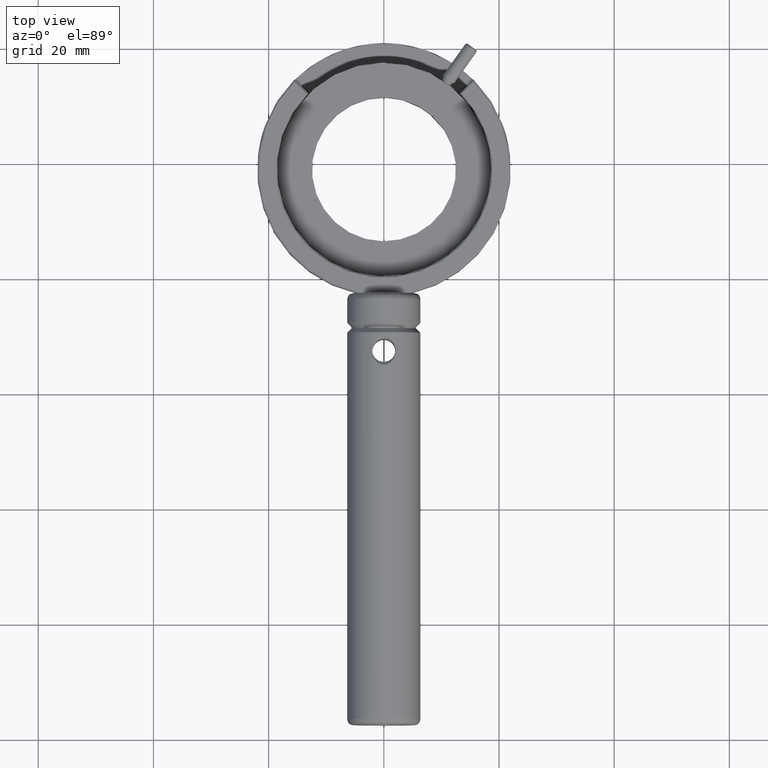
[diagram: clean part render]
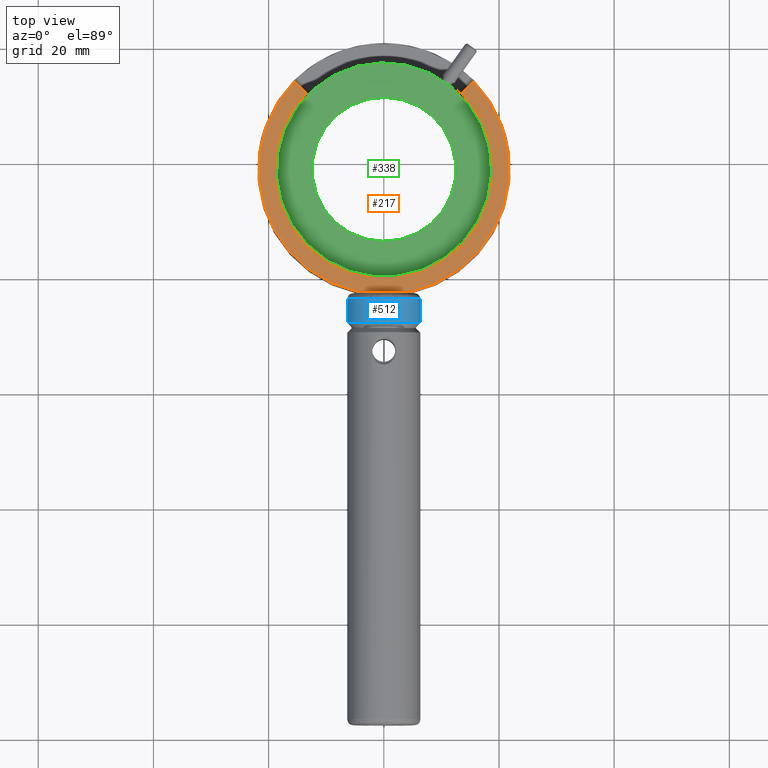
[diagram: same view with three faces highlighted in distinct colors, each labeled with its STEP entity id]
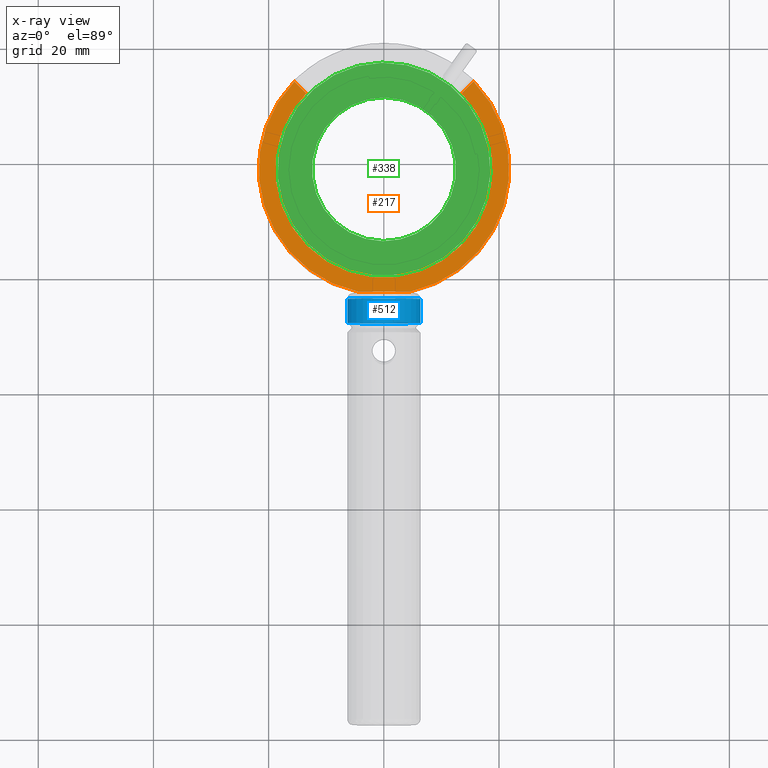
[diagram: x-ray of the same camera — body ghosted, the three highlighted faces saturated]
A machine part, top view with three faces highlighted in distinct colors.
The next image is the same camera in x-ray (body ghosted, the three faces saturated) — at least one of them is partly hidden behind the body in this view.
Their STEP definitions:

[orange] entity #217 — the highlighted planar face has unit normal (0, 0, 1).
#58 = CARTESIAN_POINT ( 'NONE',  ( -4.600498774292244519, 37.75000000000000000, 3.999999999999998224 ) ) ;
#217 = ADVANCED_FACE ( 'NONE', ( #2902 ), #6715, .T. ) ;
#719 = VERTEX_POINT ( 'NONE', #58 ) ;
#742 = AXIS2_PLACEMENT_3D ( 'NONE', #6474, #2152, #4329 ) ;
#852 = CARTESIAN_POINT ( 'NONE',  ( 0.03631047345558670314, 59.00000000000000000, 3.999999999999999112 ) ) ;
#969 = LINE ( 'NONE', #6817, #4707 ) ;
#1131 = CARTESIAN_POINT ( 'NONE',  ( 4.673119721203429222, 37.75000000000000000, 4.000000000000001776 ) ) ;
#1191 = VECTOR ( 'NONE', #4232, 1000.000000000000000 ) ;
#1257 = EDGE_CURVE ( 'NONE', #719, #6372, #6648, .T. ) ;
#1302 = CARTESIAN_POINT ( 'NONE',  ( 0.03631047345558670314, 59.00000000000000000, 4.000000000000000000 ) ) ;
#1559 = LINE ( 'NONE', #7009, #3580 ) ;
#1644 = EDGE_CURVE ( 'NONE', #3593, #719, #4386, .T. ) ;
#1843 = CARTESIAN_POINT ( 'NONE',  ( 13.55855690570796490, 72.16869304165898313, 4.000000000000000000 ) ) ;
#2152 = DIRECTION ( 'NONE',  ( 0.000000000000000000, 0.000000000000000000, -1.000000000000000000 ) ) ;
#2368 = DIRECTION ( 'NONE',  ( 1.000000000000000000, 0.000000000000000000, 0.000000000000000000 ) ) ;
#2385 = DIRECTION ( 'NONE',  ( 0.000000000000000000, 1.000000000000000000, 0.000000000000000000 ) ) ;
#2429 = CIRCLE ( 'NONE', #3114, 18.87500000000001066 ) ;
#2431 = DIRECTION ( 'NONE',  ( 1.000000000000000000, 0.000000000000000000, -0.000000000000000000 ) ) ;
#2902 = FACE_OUTER_BOUND ( 'NONE', #3900, .T. ) ;
#2911 = DIRECTION ( 'NONE',  ( -0.000000000000000000, 0.000000000000000000, -1.000000000000000000 ) ) ;
#3114 = AXIS2_PLACEMENT_3D ( 'NONE', #852, #2911, #2368 ) ;
#3153 = DIRECTION ( 'NONE',  ( -0.7071067811865487940, 0.7071067811865463515, 0.000000000000000000 ) ) ;
#3337 = EDGE_CURVE ( 'NONE', #3848, #3593, #3804, .T. ) ;
#3465 = DIRECTION ( 'NONE',  ( 0.000000000000000000, -9.856383386231859752E-18, -1.000000000000000000 ) ) ;
#3580 = VECTOR ( 'NONE', #3153, 1000.000000000000000 ) ;
#3593 = VERTEX_POINT ( 'NONE', #1131 ) ;
#3722 = ORIENTED_EDGE ( 'NONE', *, *, #1257, .F. ) ;
#3804 = CIRCLE ( 'NONE', #742, 21.74999999999999289 ) ;
#3848 = VERTEX_POINT ( 'NONE', #4100 ) ;
#3900 = EDGE_LOOP ( 'NONE', ( #6826, #4230, #6241, #3722, #5607, #5020 ) ) ;
#3909 = AXIS2_PLACEMENT_3D ( 'NONE', #1302, #6077, #2431 ) ;
#3910 = EDGE_CURVE ( 'NONE', #3848, #4745, #969, .T. ) ;
#4100 = CARTESIAN_POINT ( 'NONE',  ( 15.59164366798196966, 74.20177980393299322, 4.000000000000002665 ) ) ;
#4230 = ORIENTED_EDGE ( 'NONE', *, *, #6660, .T. ) ;
#4232 = DIRECTION ( 'NONE',  ( -1.000000000000000000, -0.000000000000000000, -0.000000000000000000 ) ) ;
#4249 = CARTESIAN_POINT ( 'NONE',  ( -13.48593595879678730, 72.16869304165899734, 4.000000000000000000 ) ) ;
#4329 = DIRECTION ( 'NONE',  ( -1.000000000000000000, 0.000000000000000000, 0.000000000000000000 ) ) ;
#4386 = LINE ( 'NONE', #5452, #1191 ) ;
#4589 = AXIS2_PLACEMENT_3D ( 'NONE', #6708, #3465, #2385 ) ;
#4707 = VECTOR ( 'NONE', #5810, 1000.000000000000000 ) ;
#4745 = VERTEX_POINT ( 'NONE', #1843 ) ;
#4993 = EDGE_CURVE ( 'NONE', #6149, #6372, #1559, .T. ) ;
#5020 = ORIENTED_EDGE ( 'NONE', *, *, #3337, .F. ) ;
#5452 = CARTESIAN_POINT ( 'NONE',  ( 4.699999999999998401, 37.75000000000000711, 4.000000000000000000 ) ) ;
#5520 = CARTESIAN_POINT ( 'NONE',  ( -15.51902272107079206, 74.20177980393299322, 4.000000000000000000 ) ) ;
#5607 = ORIENTED_EDGE ( 'NONE', *, *, #1644, .F. ) ;
#5810 = DIRECTION ( 'NONE',  ( -0.7071067811865463515, -0.7071067811865487940, 0.000000000000000000 ) ) ;
#6077 = DIRECTION ( 'NONE',  ( 0.000000000000000000, 0.000000000000000000, 1.000000000000000000 ) ) ;
#6149 = VERTEX_POINT ( 'NONE', #4249 ) ;
#6241 = ORIENTED_EDGE ( 'NONE', *, *, #4993, .T. ) ;
#6372 = VERTEX_POINT ( 'NONE', #5520 ) ;
#6474 = CARTESIAN_POINT ( 'NONE',  ( 0.03631047345558670314, 59.00000000000000000, 4.000000000000003553 ) ) ;
#6648 = CIRCLE ( 'NONE', #4589, 21.74999999999999289 ) ;
#6660 = EDGE_CURVE ( 'NONE', #4745, #6149, #2429, .T. ) ;
#6708 = CARTESIAN_POINT ( 'NONE',  ( 0.03631047345558670314, 59.00000000000000000, 3.999999999999997335 ) ) ;
#6715 = PLANE ( 'NONE',  #3909 ) ;
#6817 = CARTESIAN_POINT ( 'NONE',  ( 15.59164366798196966, 74.20177980393299322, 4.000000000000000000 ) ) ;
#6826 = ORIENTED_EDGE ( 'NONE', *, *, #3910, .T. ) ;
#7009 = CARTESIAN_POINT ( 'NONE',  ( -13.48593595879678908, 72.16869304165899734, 4.000000000000000000 ) ) ;

[blue] entity #512 — the highlighted cylindrical surface (bore or boss wall) has radius 6.35 mm, axis along (0, -1, -0).
#343 = EDGE_LOOP ( 'NONE', ( #3202 ) ) ;
#369 = FACE_OUTER_BOUND ( 'NONE', #5304, .T. ) ;
#512 = ADVANCED_FACE ( 'NONE', ( #4774, #369 ), #3641, .T. ) ;
#589 = DIRECTION ( 'NONE',  ( 1.000000000000000000, 0.000000000000000000, -1.224646799147353207E-16 ) ) ;
#624 = AXIS2_PLACEMENT_3D ( 'NONE', #1116, #5458, #589 ) ;
#954 = CIRCLE ( 'NONE', #624, 6.349999999999999645 ) ;
#1116 = CARTESIAN_POINT ( 'NONE',  ( 0.000000000000000000, 36.50000000000000000, 0.000000000000000000 ) ) ;
#1118 = EDGE_CURVE ( 'NONE', #5066, #5066, #2650, .T. ) ;
#1896 = VERTEX_POINT ( 'NONE', #3097 ) ;
#2077 = AXIS2_PLACEMENT_3D ( 'NONE', #5280, #2464, #4207 ) ;
#2464 = DIRECTION ( 'NONE',  ( 0.000000000000000000, -1.000000000000000000, -0.000000000000000000 ) ) ;
#2650 = CIRCLE ( 'NONE', #4478, 6.349999999997635314 ) ;
#3097 = CARTESIAN_POINT ( 'NONE',  ( 6.349999999999999645, 36.50000000000000000, -7.776507174585692163E-16 ) ) ;
#3202 = ORIENTED_EDGE ( 'NONE', *, *, #1118, .F. ) ;
#3641 = CYLINDRICAL_SURFACE ( 'NONE', #2077, 6.349999999999999645 ) ;
#3860 = CARTESIAN_POINT ( 'NONE',  ( -6.349999999997635314, 32.35000000006493792, 7.776507174582797043E-16 ) ) ;
#4029 = DIRECTION ( 'NONE',  ( -0.000000000000000000, -1.000000000000000000, -0.000000000000000000 ) ) ;
#4089 = ORIENTED_EDGE ( 'NONE', *, *, #5330, .T. ) ;
#4207 = DIRECTION ( 'NONE',  ( 1.000000000000000000, 0.000000000000000000, -1.224646799147353207E-16 ) ) ;
#4478 = AXIS2_PLACEMENT_3D ( 'NONE', #5029, #4029, #6677 ) ;
#4774 = FACE_OUTER_BOUND ( 'NONE', #343, .T. ) ;
#5029 = CARTESIAN_POINT ( 'NONE',  ( 0.000000000000000000, 32.35000000006493792, 0.000000000000000000 ) ) ;
#5066 = VERTEX_POINT ( 'NONE', #3860 ) ;
#5280 = CARTESIAN_POINT ( 'NONE',  ( 0.000000000000000000, 37.50000000000000000, 0.000000000000000000 ) ) ;
#5304 = EDGE_LOOP ( 'NONE', ( #4089 ) ) ;
#5330 = EDGE_CURVE ( 'NONE', #1896, #1896, #954, .T. ) ;
#5458 = DIRECTION ( 'NONE',  ( 0.000000000000000000, -1.000000000000000000, -0.000000000000000000 ) ) ;
#6677 = DIRECTION ( 'NONE',  ( -1.000000000000000000, 0.000000000000000000, 1.224646799147353207E-16 ) ) ;

[green] entity #338 — the highlighted planar face has unit normal (0, 0, 1).
#27 = EDGE_LOOP ( 'NONE', ( #5611 ) ) ;
#338 = ADVANCED_FACE ( 'NONE', ( #672, #2000 ), #5211, .T. ) ;
#672 = FACE_OUTER_BOUND ( 'NONE', #27, .T. ) ;
#1306 = CIRCLE ( 'NONE', #2211, 18.50000000000000355 ) ;
#1648 = CIRCLE ( 'NONE', #5627, 12.50000000000000355 ) ;
#1794 = VERTEX_POINT ( 'NONE', #3961 ) ;
#2000 = FACE_BOUND ( 'NONE', #6050, .T. ) ;
#2211 = AXIS2_PLACEMENT_3D ( 'NONE', #3835, #3300, #5134 ) ;
#2322 = CARTESIAN_POINT ( 'NONE',  ( -10.12897344559702972, 66.27440738789421459, 2.060000000000004494 ) ) ;
#2526 = DIRECTION ( 'NONE',  ( 1.065302022606572747E-15, 1.774820270857323644E-15, 1.000000000000000000 ) ) ;
#3300 = DIRECTION ( 'NONE',  ( 1.065302022606572944E-15, 1.774820270857323644E-15, 1.000000000000000000 ) ) ;
#3387 = EDGE_CURVE ( 'NONE', #6139, #6139, #1648, .T. ) ;
#3558 = EDGE_CURVE ( 'NONE', #1794, #1794, #1306, .T. ) ;
#3689 = DIRECTION ( 'NONE',  ( -1.065302022606572944E-15, -1.774820270857323644E-15, -1.000000000000000000 ) ) ;
#3835 = CARTESIAN_POINT ( 'NONE',  ( 0.03631047345558432310, 58.99999999999996447, 2.060000000000006715 ) ) ;
#3884 = ORIENTED_EDGE ( 'NONE', *, *, #3387, .T. ) ;
#3961 = CARTESIAN_POINT ( 'NONE',  ( -15.00830972674227226, 69.76612293408346943, 2.060000000000003606 ) ) ;
#4715 = CARTESIAN_POINT ( 'NONE',  ( 0.03631047345558432310, 58.99999999999996447, 2.060000000000006715 ) ) ;
#4740 = CARTESIAN_POINT ( 'NONE',  ( 0.03631047345558432310, 58.99999999999996447, 2.060000000000006715 ) ) ;
#5134 = DIRECTION ( 'NONE',  ( -0.8132227135242082738, 0.5819525910315405115, -1.640954639437520011E-16 ) ) ;
#5179 = DIRECTION ( 'NONE',  ( 0.8132227135242090510, -0.5819525910315395123, 1.665334536937727908E-16 ) ) ;
#5211 = PLANE ( 'NONE',  #6639 ) ;
#5611 = ORIENTED_EDGE ( 'NONE', *, *, #3558, .T. ) ;
#5627 = AXIS2_PLACEMENT_3D ( 'NONE', #4715, #3689, #6895 ) ;
#6050 = EDGE_LOOP ( 'NONE', ( #3884 ) ) ;
#6139 = VERTEX_POINT ( 'NONE', #2322 ) ;
#6639 = AXIS2_PLACEMENT_3D ( 'NONE', #4740, #2526, #5179 ) ;
#6895 = DIRECTION ( 'NONE',  ( -0.8132227135242089400, 0.5819525910315397343, -1.734723475976806601E-16 ) ) ;